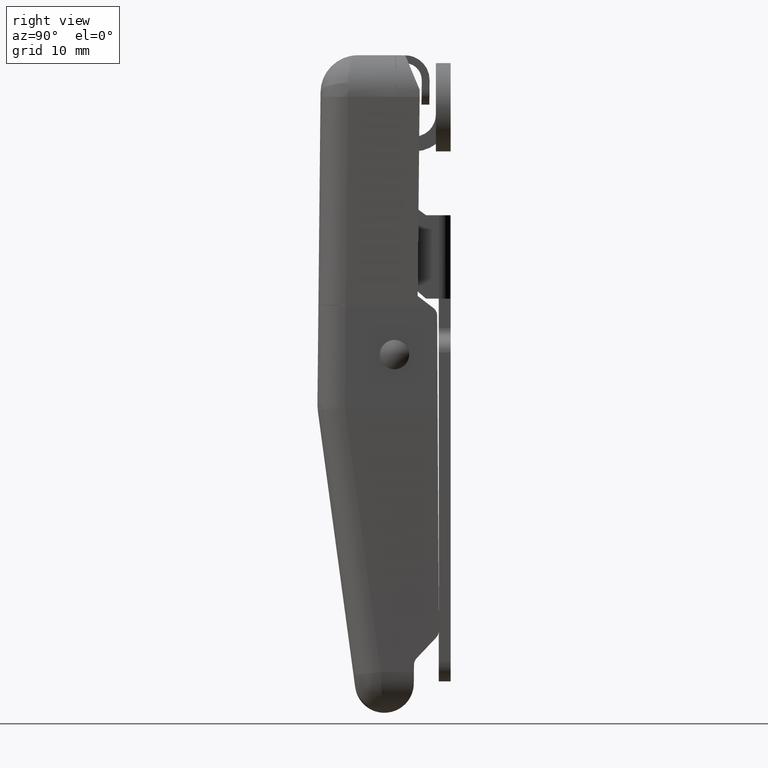
[diagram: clean part render]
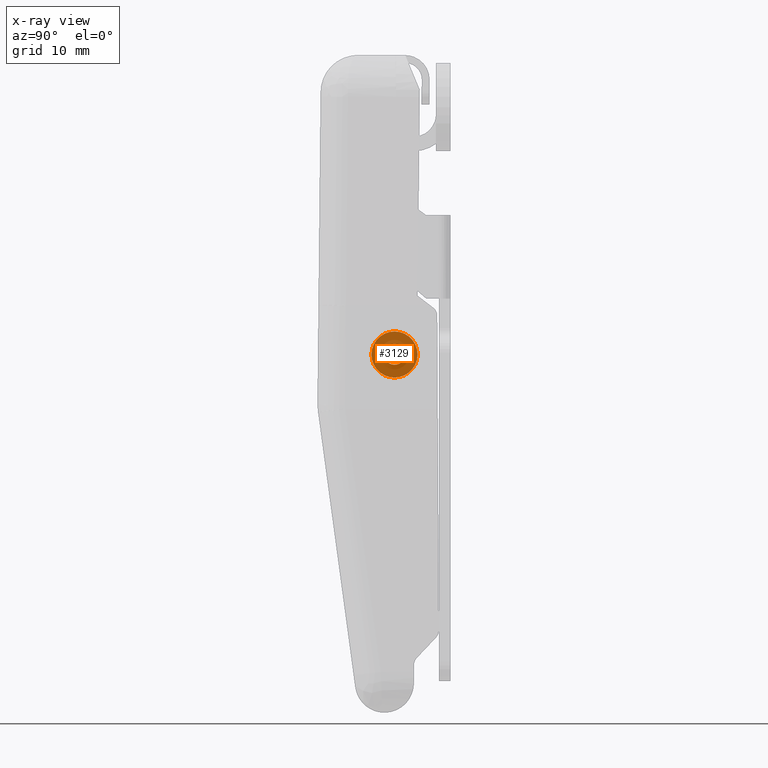
[diagram: x-ray — body ghosted, one internal face saturated and labeled with its STEP entity id]
A machine part, right view, then the same camera in x-ray: the body is ghosted and one INTERNAL B-rep face — a face not visible from any outside direction — is saturated and labeled: STEP entity #3129.
In plain terms, the highlighted face is a freeform B-spline surface patch.
Its self-contained STEP definition (entity closure, byte-faithful):
#2944=CARTESIAN_POINT('',(-14.100000000051780,0.722772056883040,5.736087123494483));
#2945=VERTEX_POINT('',#2944);
#2946=CARTESIAN_POINT('',(-14.100000000052599,1.049999999983801,4.974442674088238));
#2947=VERTEX_POINT('',#2946);
#2948=CARTESIAN_POINT('',(-14.100000000051780,0.722772056883040,5.736087123494483));
#2949=CARTESIAN_POINT('',(-14.100000000051880,0.819441440751471,5.644497193728661));
#2950=CARTESIAN_POINT('',(-14.100000000052150,0.987638061985424,5.409235413057385));
#2951=CARTESIAN_POINT('',(-14.100000000052439,1.050212449976542,5.125372664163029));
#2952=CARTESIAN_POINT('',(-14.100000000052599,1.049999999983801,4.974442674088238));
#2953=B_SPLINE_CURVE_WITH_KNOTS('',3,(#2948,#2949,#2950,#2951,#2952),.UNSPECIFIED.,.F.,.U.,(4,1,4),(0.000000041686642,0.399470157729249,0.852181316635579),.UNSPECIFIED.);
#2954=EDGE_CURVE('',#2945,#2947,#2953,.T.);
#2964=CARTESIAN_POINT('',(-14.100000000051780,-0.722772056883040,4.212801655216200));
#2965=VERTEX_POINT('',#2964);
#2971=CARTESIAN_POINT('',(-14.100000000052599,0.0,3.924444389370139));
#2972=VERTEX_POINT('',#2971);
#2973=CARTESIAN_POINT('',(-14.100000000052599,0.0,3.924444389370139));
#2974=CARTESIAN_POINT('',(-14.100000000052511,-0.124574098664296,3.924355848145341));
#2975=CARTESIAN_POINT('',(-14.100000000052059,-0.390221635935424,3.972306327248646));
#2976=CARTESIAN_POINT('',(-14.100000000051960,-0.620472429342450,4.115492441874544));
#2977=CARTESIAN_POINT('',(-14.100000000051780,-0.722772056883040,4.212801655216200));
#2978=B_SPLINE_CURVE_WITH_KNOTS('',3,(#2973,#2974,#2975,#2976,#2977),.UNSPECIFIED.,.F.,.U.,(4,1,4),(0.000000029884140,0.373694773570832,0.797197731453214),.UNSPECIFIED.);
#2979=EDGE_CURVE('',#2972,#2965,#2978,.T.);
#2981=CARTESIAN_POINT('',(-14.100000000052599,1.049999999983801,4.974442674088238));
#2982=CARTESIAN_POINT('',(-14.100000000052610,1.050026351872293,4.871361673656111));
#2983=CARTESIAN_POINT('',(-14.100000000052610,1.016898503994880,4.648001116263690));
#2984=CARTESIAN_POINT('',(-14.100000000052590,0.879718884215366,4.375491452378091));
#2985=CARTESIAN_POINT('',(-14.100000000052560,0.662047233219393,4.141162485986373));
#2986=CARTESIAN_POINT('',(-14.100000000052750,0.377920144242640,3.970888706602481));
#2987=CARTESIAN_POINT('',(-14.100000000052500,0.128868327733524,3.924334950136616));
#2988=CARTESIAN_POINT('',(-14.100000000052599,0.0,3.924444389370139));
#2989=B_SPLINE_CURVE_WITH_KNOTS('',3,(#2981,#2982,#2983,#2984,#2985,#2986,#2987,#2988),.UNSPECIFIED.,.F.,.U.,(4,1,1,1,1,4),(0.000000130230104,0.309256740070381,0.670076222657184,0.901984716822492,1.262805059336064,1.649376564761971),.UNSPECIFIED.);
#2990=EDGE_CURVE('',#2947,#2972,#2989,.T.);
#3013=CARTESIAN_POINT('',(-14.100000000052599,0.0,6.024444389340543));
#3014=VERTEX_POINT('',#3013);
#3015=CARTESIAN_POINT('',(-14.100000000052599,0.0,6.024444389340543));
#3016=CARTESIAN_POINT('',(-14.100000000052439,0.141191910875419,6.024617293864056));
#3017=CARTESIAN_POINT('',(-14.100000000052150,0.406764292011452,5.969978329604282));
#3018=CARTESIAN_POINT('',(-14.100000000051880,0.632471797686128,5.821902281449695));
#3019=CARTESIAN_POINT('',(-14.100000000051780,0.722772056883040,5.736087123494483));
#3020=B_SPLINE_CURVE_WITH_KNOTS('',3,(#3015,#3016,#3017,#3018,#3019),.UNSPECIFIED.,.F.,.U.,(4,1,4),(0.000000029884094,0.423502987797918,0.797197731453215),.UNSPECIFIED.);
#3021=EDGE_CURVE('',#3014,#2945,#3020,.T.);
#3023=CARTESIAN_POINT('',(-14.100000000052599,-1.049999999983801,4.974446104622449));
#3024=VERTEX_POINT('',#3023);
#3025=CARTESIAN_POINT('',(-14.100000000052599,-1.049999999983801,4.974446104622449));
#3026=CARTESIAN_POINT('',(-14.100000000052580,-1.050114916988019,5.103318804100104));
#3027=CARTESIAN_POINT('',(-14.100000000052630,-1.011542130492577,5.309391292036944));
#3028=CARTESIAN_POINT('',(-14.100000000052599,-0.860312151433644,5.600959031112152));
#3029=CARTESIAN_POINT('',(-14.100000000052569,-0.667975341698124,5.802968338377164));
#3030=CARTESIAN_POINT('',(-14.100000000052640,-0.369251312403763,5.977053138862100));
#3031=CARTESIAN_POINT('',(-14.100000000052569,-0.146073050522228,6.024643729720288));
#3032=CARTESIAN_POINT('',(-14.100000000052599,0.0,6.024444389340543));
#3033=B_SPLINE_CURVE_WITH_KNOTS('',3,(#3025,#3026,#3027,#3028,#3029,#3030,#3031,#3032),.UNSPECIFIED.,.F.,.U.,(4,1,1,1,1,4),(0.000000130230007,0.386572213467489,0.618521152255314,0.979300103495864,1.211259854451133,1.649376564761971),.UNSPECIFIED.);
#3034=EDGE_CURVE('',#3024,#3014,#3033,.T.);
#3036=CARTESIAN_POINT('',(-14.100000000051780,-0.722772056883040,4.212801655216200));
#3037=CARTESIAN_POINT('',(-14.100000000051841,-0.780729956170261,4.267785424043114));
#3038=CARTESIAN_POINT('',(-14.100000000051949,-0.895504281193722,4.404752912988819));
#3039=CARTESIAN_POINT('',(-14.100000000052400,-1.018668428669808,4.663784135551704));
#3040=CARTESIAN_POINT('',(-14.100000000052409,-1.050050696982888,4.867921392933404));
#3041=CARTESIAN_POINT('',(-14.100000000052599,-1.049999999983801,4.974446104622449));
#3042=B_SPLINE_CURVE_WITH_KNOTS('',3,(#3036,#3037,#3038,#3039,#3040,#3041),.UNSPECIFIED.,.F.,.U.,(4,1,1,4),(0.000000041686640,0.239677160929091,0.532613103829041,0.852181316635583),.UNSPECIFIED.);
#3043=EDGE_CURVE('',#2965,#3024,#3042,.T.);
#3053=CARTESIAN_POINT('',(-14.100000000052599,-2.584764990872494,2.389679398482523));
#3054=CARTESIAN_POINT('',(-14.100000000052599,-2.584764990872494,7.559209506291983));
#3055=CARTESIAN_POINT('',(-14.100000000052599,2.584765116936317,2.389679398482523));
#3056=CARTESIAN_POINT('',(-14.100000000052599,2.584765116936317,7.559209506291983));
#3057=B_SPLINE_SURFACE_WITH_KNOTS('',1,1,((#3053,#3055),(#3054,#3056)),.UNSPECIFIED.,.F.,.F.,.U.,(2,2),(2,2),(0.0,5.169530107809460),(0.0,5.169530107808811),.UNSPECIFIED.);
#3058=CARTESIAN_POINT('',(-14.100000000052599,-2.349999999983640,4.974445567893259));
#3059=VERTEX_POINT('',#3058);
#3060=CARTESIAN_POINT('',(-14.100000000052599,0.0,7.324444389339276));
#3061=VERTEX_POINT('',#3060);
#3062=CARTESIAN_POINT('',(-14.100000000052599,-2.349999999983640,4.974445567893259));
#3063=CARTESIAN_POINT('',(-14.100000000052660,-2.350067684957251,5.185936812676186));
#3064=CARTESIAN_POINT('',(-14.100000000052541,-2.296431000324068,5.580031533592056));
#3065=CARTESIAN_POINT('',(-14.100000000052569,-2.103038276895988,6.055141510600791));
#3066=CARTESIAN_POINT('',(-14.100000000052709,-1.845456093097700,6.451041030550257));
#3067=CARTESIAN_POINT('',(-14.100000000052621,-1.525361685913112,6.787283697482980));
#3068=CARTESIAN_POINT('',(-14.100000000052569,-1.083066828713353,7.082819298410992));
#3069=CARTESIAN_POINT('',(-14.100000000052630,-0.567143076112403,7.278184650223594));
#3070=CARTESIAN_POINT('',(-14.100000000052599,-0.192260009930859,7.324489582972038));
#3071=CARTESIAN_POINT('',(-14.100000000052599,0.0,7.324444389339276));
#3072=B_SPLINE_CURVE_WITH_KNOTS('',3,(#3062,#3063,#3064,#3065,#3066,#3067,#3068,#3069,#3070,#3071),.UNSPECIFIED.,.F.,.U.,(4,1,1,1,1,1,1,4),(0.000000082800221,0.634455945584353,1.182406102625551,1.528484827722973,2.047569233629347,2.566669979360650,3.114622772931590,3.691393865490902),.UNSPECIFIED.);
#3073=EDGE_CURVE('',#3059,#3061,#3072,.T.);
#3074=ORIENTED_EDGE('',*,*,#3073,.F.);
#3075=CARTESIAN_POINT('',(-14.100000000052599,0.0,2.624444389371406));
#3076=VERTEX_POINT('',#3075);
#3077=CARTESIAN_POINT('',(-14.100000000052599,0.0,2.624444389371406));
#3078=CARTESIAN_POINT('',(-14.100000000052599,-0.163416226936082,2.624424220437450));
#3079=CARTESIAN_POINT('',(-14.100000000052621,-0.509481561592262,2.660668668004522));
#3080=CARTESIAN_POINT('',(-14.100000000052530,-0.968031922891494,2.815278703150269));
#3081=CARTESIAN_POINT('',(-14.100000000052670,-1.434891856092480,3.087328471065980));
#3082=CARTESIAN_POINT('',(-14.100000000052630,-1.809723571575934,3.439835439103997));
#3083=CARTESIAN_POINT('',(-14.100000000052541,-2.115218307112512,3.909488510900039));
#3084=CARTESIAN_POINT('',(-14.100000000052740,-2.303742316092925,4.407300759423794));
#3085=CARTESIAN_POINT('',(-14.100000000052489,-2.350044826292923,4.782185822545737));
#3086=CARTESIAN_POINT('',(-14.100000000052599,-2.349999999983640,4.974445567893259));
#3087=B_SPLINE_CURVE_WITH_KNOTS('',3,(#3077,#3078,#3079,#3080,#3081,#3082,#3083,#3084,#3085,#3086),.UNSPECIFIED.,.F.,.U.,(4,1,1,1,1,1,1,4),(0.000000082391838,0.490251020417975,1.038206843440511,1.441958432047816,2.105239251736724,2.566670903658361,3.114623894410178,3.691395193986134),.UNSPECIFIED.);
#3088=EDGE_CURVE('',#3076,#3059,#3087,.T.);
#3089=ORIENTED_EDGE('',*,*,#3088,.F.);
#3090=CARTESIAN_POINT('',(-14.100000000052599,2.349999999983640,4.974443210817429));
#3091=VERTEX_POINT('',#3090);
#3092=CARTESIAN_POINT('',(-14.100000000052599,2.349999999983640,4.974443210817429));
#3093=CARTESIAN_POINT('',(-14.100000000052630,2.350070298276040,4.762954063417690));
#3094=CARTESIAN_POINT('',(-14.100000000052651,2.299041675479585,4.388079064515440));
#3095=CARTESIAN_POINT('',(-14.100000000052500,2.122333203033766,3.938278773015656));
#3096=CARTESIAN_POINT('',(-14.100000000052679,1.907161040852943,3.584241721492658));
#3097=CARTESIAN_POINT('',(-14.100000000052621,1.669267035165267,3.305006662561860));
#3098=CARTESIAN_POINT('',(-14.100000000052541,1.352124295553728,3.038150391307458));
#3099=CARTESIAN_POINT('',(-14.100000000052701,0.993268979247693,2.828985297730041));
#3100=CARTESIAN_POINT('',(-14.100000000052541,0.528687673161088,2.665978162183141));
#3101=CARTESIAN_POINT('',(-14.100000000052580,0.192260894121656,2.624393827704305));
#3102=CARTESIAN_POINT('',(-14.100000000052599,0.0,2.624444389371406));
#3103=B_SPLINE_CURVE_WITH_KNOTS('',3,(#3092,#3093,#3094,#3095,#3096,#3097,#3098,#3099,#3100,#3101,#3102),.UNSPECIFIED.,.F.,.U.,(4,1,1,1,1,1,1,1,4),(0.000000082800283,0.634455945584384,1.124727927377805,1.441957912797418,1.874510831962964,2.220588365733387,2.682026155661717,3.114622772931597,3.691393865490907),.UNSPECIFIED.);
#3104=EDGE_CURVE('',#3091,#3076,#3103,.T.);
#3105=ORIENTED_EDGE('',*,*,#3104,.F.);
#3106=CARTESIAN_POINT('',(-14.100000000052599,0.0,7.324444389339276));
#3107=CARTESIAN_POINT('',(-14.100000000052560,0.278811157534527,7.324654060716936));
#3108=CARTESIAN_POINT('',(-14.100000000052630,0.692009781953683,7.250018211143656));
#3109=CARTESIAN_POINT('',(-14.100000000052610,1.171707483049570,7.023021963421515));
#3110=CARTESIAN_POINT('',(-14.100000000052590,1.497583069388586,6.799463812465837));
#3111=CARTESIAN_POINT('',(-14.100000000052610,1.817335431218371,6.491310663578281));
#3112=CARTESIAN_POINT('',(-14.100000000052621,2.104957887414628,6.066577481610199));
#3113=CARTESIAN_POINT('',(-14.100000000052519,2.303735029792245,5.541582739920754));
#3114=CARTESIAN_POINT('',(-14.100000000052640,2.350046222029733,5.166704084662064));
#3115=CARTESIAN_POINT('',(-14.100000000052599,2.349999999983640,4.974443210817429));
#3116=B_SPLINE_CURVE_WITH_KNOTS('',3,(#3106,#3107,#3108,#3109,#3110,#3111,#3112,#3113,#3114,#3115),.UNSPECIFIED.,.F.,.U.,(4,1,1,1,1,1,1,4),(0.000000082392472,0.836331769975965,1.240082807675971,1.586160768356430,2.018710121821473,2.566670903658377,3.114623894410183,3.691395193986134),.UNSPECIFIED.);
#3117=EDGE_CURVE('',#3061,#3091,#3116,.T.);
#3118=ORIENTED_EDGE('',*,*,#3117,.F.);
#3119=EDGE_LOOP('',(#3074,#3089,#3105,#3118));
#3120=FACE_OUTER_BOUND('',#3119,.T.);
#3121=ORIENTED_EDGE('',*,*,#2990,.T.);
#3122=ORIENTED_EDGE('',*,*,#2979,.T.);
#3123=ORIENTED_EDGE('',*,*,#3043,.T.);
#3124=ORIENTED_EDGE('',*,*,#3034,.T.);
#3125=ORIENTED_EDGE('',*,*,#3021,.T.);
#3126=ORIENTED_EDGE('',*,*,#2954,.T.);
#3127=EDGE_LOOP('',(#3121,#3122,#3123,#3124,#3125,#3126));
#3128=FACE_BOUND('',#3127,.T.);
#3129=ADVANCED_FACE('',(#3120,#3128),#3057,.F.);